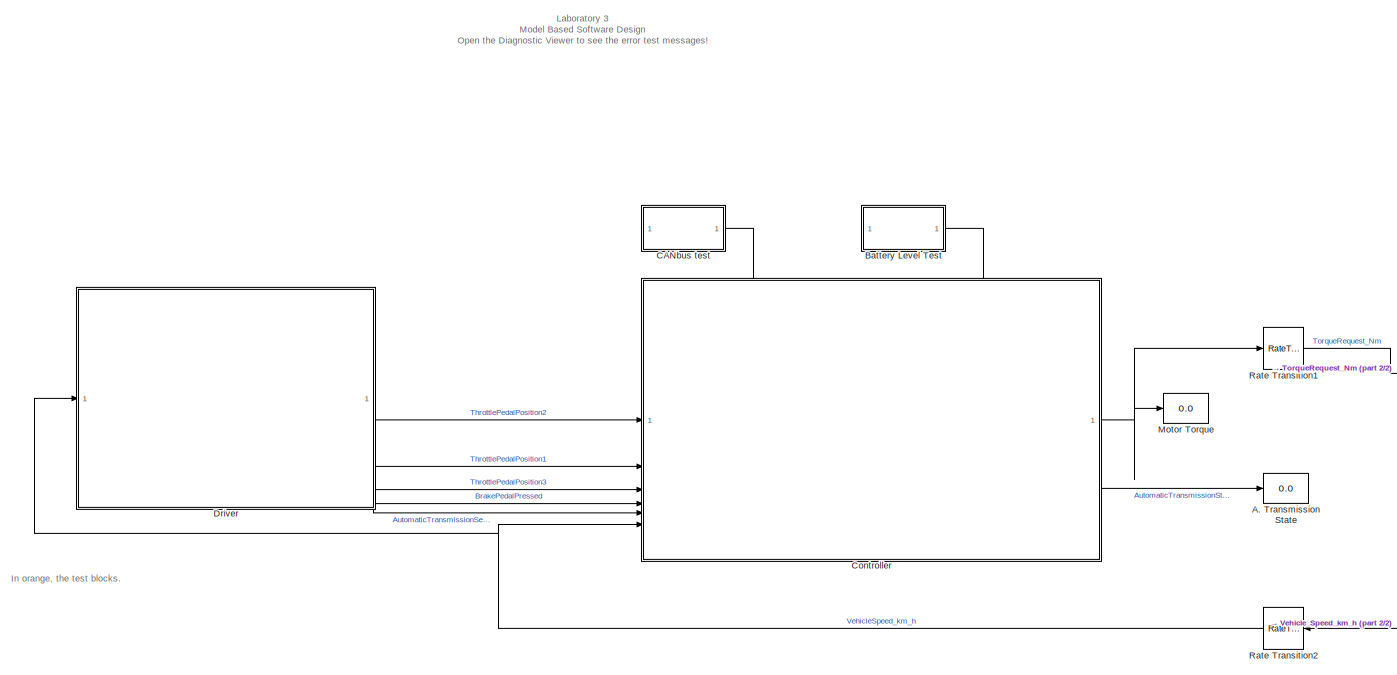
[diagram: root canvas - part 1/2, center side, full height]
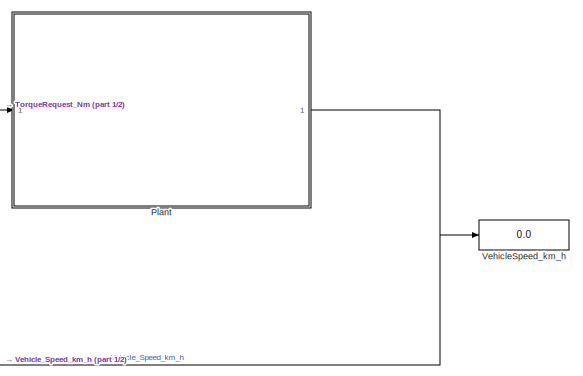
[diagram: root canvas - part 2/2, bottom right region]
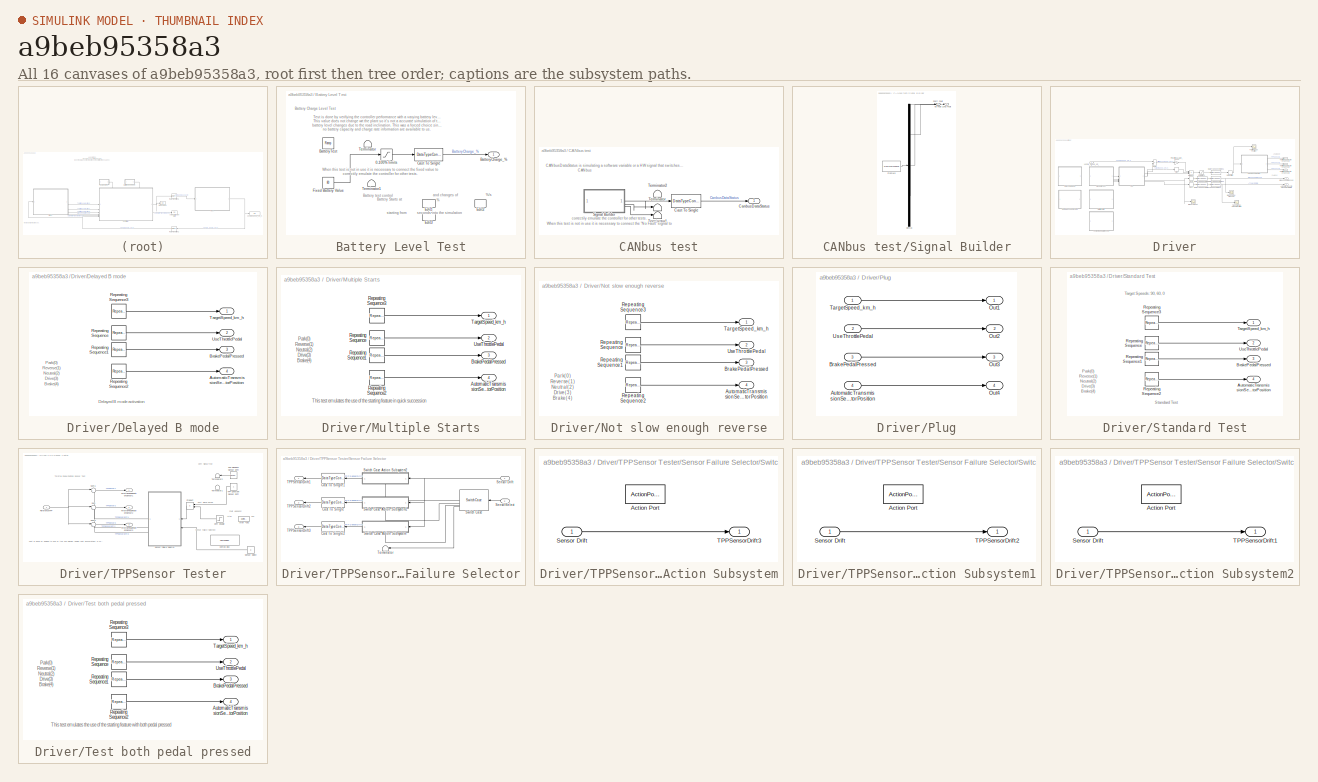
[diagram: thumbnail index - all 16 canvases of the model, root first then tree order]
MODEL slx_a9beb95358a3
KIND model
CONFIG AbsTol = auto
CONFIG EnableMultiTasking = off
CONFIG FixedStep = 1/10
CONFIG InitFcn = init_fn()
CONFIG MaxStep = auto
CONFIG MinStep = auto
CONFIG RelTol = 1e-3
CONFIG SampleTimeConstraint = Unconstrained
CONFIG SolverName = ode45
CONFIG StartTime = 0.0
CONFIG StopTime = 100
BLOCK [Display] A. Transmission State
  Decimation = 1
BLOCK [SubSystem] Battery Level Test
BLOCK [Saturate] Battery Level Test/0-100% limits
  LowerLimit = 0
  UpperLimit = 100
BLOCK [Outport] Battery Level Test/BatteryCharge_%
BLOCK [Reference] Battery Level Test/BatteryTest  REF=simulink/Sources/Ramp
  SourceBlock = simulink/Sources/Ramp
  SourceType = Ramp
BLOCK [DataTypeConversion] Battery Level Test/Cast To Single
  OutDataTypeStr = single
  RndMeth = Floor
  SaturateOnIntegerOverflow = off
BLOCK [EditField] Battery Level Test/Edit1
  Alignment = Center
  LabelPosition = Hide
  ShowInitialText = on
BLOCK [EditField] Battery Level Test/Edit2
  Alignment = Center
  LabelPosition = Hide
  ShowInitialText = on
BLOCK [EditField] Battery Level Test/Edit3
  Alignment = Center
  LabelPosition = Hide
  ShowInitialText = on
BLOCK [Constant] Battery Level Test/Fixed Battery Value
  Value = 80
BLOCK [Terminator] Battery Level Test/Terminator
BLOCK [Terminator] Battery Level Test/Terminator1
BLOCK [SubSystem] CANbus test
BLOCK [Outport] CANbus test/CanbusDataStatus
BLOCK [DataTypeConversion] CANbus test/Cast To Single
  OutDataTypeStr = single
  RndMeth = Floor
  SaturateOnIntegerOverflow = off
BLOCK [SubSystem] CANbus test/Signal Builder
  ClipboardFcn = sigbuilder_block('clipboard');
  CloseFcn = sigbuilder_block('close');
  ContinueFcn = sigbuilder_block('continue');
  CopyFcn = sigbuilder_block('copy');
  DeleteFcn = sigbuilder_block('delete');
  LoadFcn = sigbuilder_block('load');
  MaskHideContents = on
  ModelCloseFcn = sigbuilder_block('modelClose');
  NameChangeFcn = sigbuilder_block('namechange');
  OpenFcn = sigbuilder_block('open',[437.6 199.2 550.4 400 ]);
  PauseFcn = sigbuilder_block('pause');
  PreSaveFcn = sigbuilder_block('preSave');
  StartFcn = sigbuilder_block('start');
  StopFcn = sigbuilder_block('stop');
  Tag = STV Subsys
BLOCK [Demux] CANbus test/Signal Builder/Demux
  DisplayOption = none
  Outputs = 3
  Tag = STV Demux
BLOCK [FromWorkspace] CANbus test/Signal Builder/FromWs
  Tag = STV FromWs
  VariableName = tuvar
BLOCK [Outport] CANbus test/Signal Builder/Long Fault
  Port = 3
  Tag = STV Outport
BLOCK [Outport] CANbus test/Signal Builder/No Fault
  Tag = STV Outport
BLOCK [Outport] CANbus test/Signal Builder/Short Fault
  Port = 2
  Tag = STV Outport
BLOCK [Terminator] CANbus test/Terminator
BLOCK [Terminator] CANbus test/Terminator1
BLOCK [Terminator] CANbus test/Terminator2
BLOCK [ModelReference] Controller
  ModelNameDialog = controller
  ModelReferenceVersion = 3.126
  PortSchema = {"entries":[{"content":{"sides":[{"content":{"connectorIds":["In2","In1","In3","In4","In5","In7"]},"type":"ConnectorPlacement.EquallySpacedRectSide","uuid":"5e260b81-e1ce-497c-8572-ac5c2182ee27"},{"content":{"connectorIds":["Out1","Out2"],"side":"RIGHT"},"type":"ConnectorPlacement.EquallySpacedRectSide","uuid":"4325f63c-e453-4c79-ab01-1476da99aa25"},{"content":{"connectorIds":["In6","In8"],"side":...<+288ch>
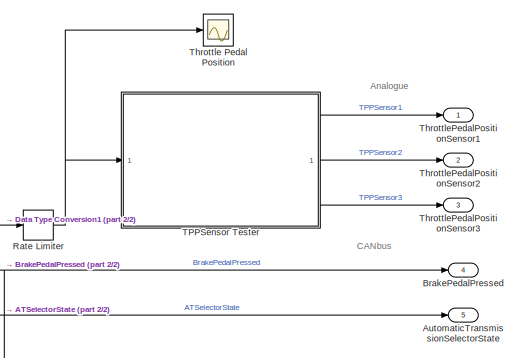
[diagram: Driver - part 1/2, top right region]
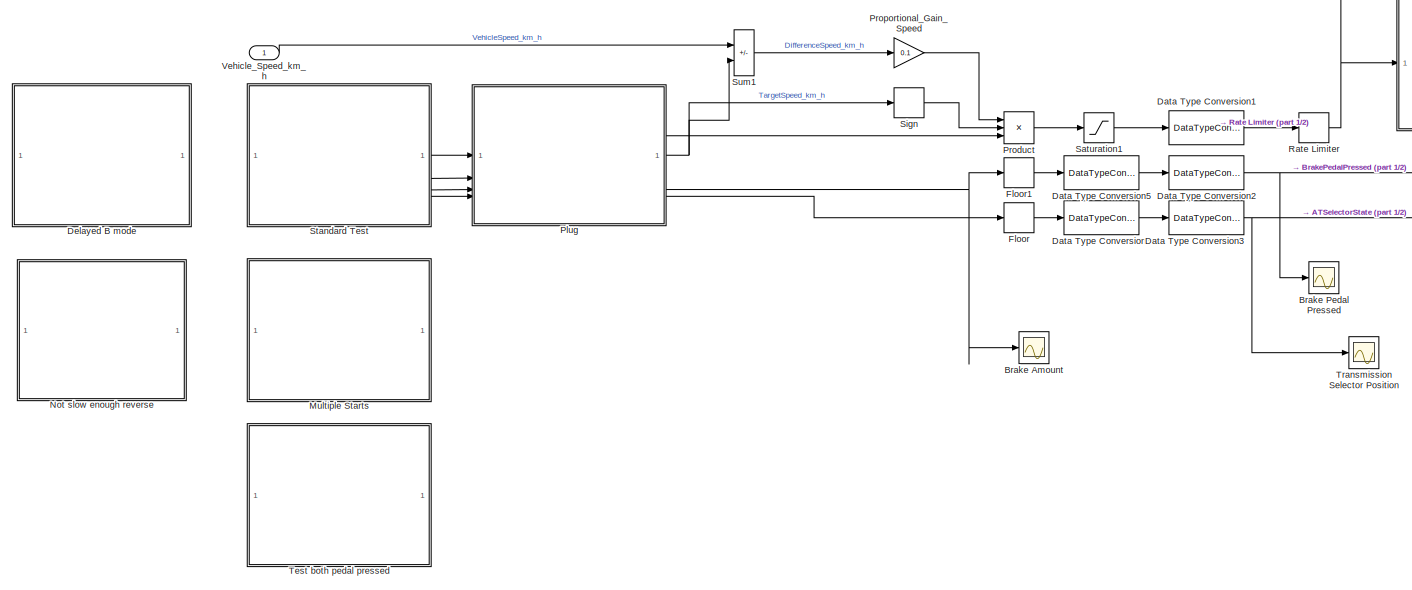
[diagram: Driver - part 2/2, most of the canvas]
BLOCK [SubSystem] Driver
BLOCK [Outport] Driver/AutomaticTransmissionSelectorState
  OutDataTypeStr = Enum: TransmissionState
  Port = 5
BLOCK [Scope] Driver/Brake Amount
  Floating = off
  NumInputPorts = 1
  ScopeSpecificationString = Simulink.scopes.TimeScopeBlockCfg('CurrentConfiguration', extmgr.ConfigurationSet(extmgr.Configuration('Core','General UI',true),extmgr.Configuration('Core','Source UI',true),extmgr.Configuration('Sources','WiredSimulink',true,'DataLoggingVariableName','ScopeData3'),extmgr.Configuration('Visuals','Time Domain',true,'SerializedDisplays',{struct('MinYLimReal','-0.125','MaxYLimReal','1.125','YLabelRe...<+1366ch>
BLOCK [Scope] Driver/Brake Pedal Pressed
  Floating = off
  NumInputPorts = 1
  ScopeSpecificationString = Simulink.scopes.TimeScopeBlockCfg('CurrentConfiguration', extmgr.ConfigurationSet(extmgr.Configuration('Core','General UI',true),extmgr.Configuration('Core','Source UI',true),extmgr.Configuration('Sources','WiredSimulink',true,'DataLoggingVariableName','ScopeData1'),extmgr.Configuration('Visuals','Time Domain',true,'SerializedDisplays',{struct('MinYLimReal','-0.125','MaxYLimReal','1.125','YLabelRe...<+1366ch>
BLOCK [Outport] Driver/BrakePedalPressed
  Port = 4
BLOCK [DataTypeConversion] Driver/Data Type Conversion1
  LockScale = on
  OutDataTypeStr = single
  RndMeth = Floor
  SaturateOnIntegerOverflow = off
BLOCK [DataTypeConversion] Driver/Data Type Conversion2
  LockScale = on
  OutDataTypeStr = boolean
  RndMeth = Floor
  SaturateOnIntegerOverflow = off
BLOCK [DataTypeConversion] Driver/Data Type Conversion3
  LockScale = on
  OutDataTypeStr = Enum: TransmissionState
  RndMeth = Floor
  SaturateOnIntegerOverflow = off
BLOCK [DataTypeConversion] Driver/Data Type Conversion4
  LockScale = on
  OutDataTypeStr = int32
  RndMeth = Floor
  SaturateOnIntegerOverflow = off
BLOCK [DataTypeConversion] Driver/Data Type Conversion5
  LockScale = on
  OutDataTypeStr = int32
  RndMeth = Floor
  SaturateOnIntegerOverflow = off
BLOCK [SubSystem] Driver/Delayed B mode
BLOCK [Outport] Driver/Delayed B mode/AutomaticTransmissionSelectorPosition
  Port = 4
BLOCK [Outport] Driver/Delayed B mode/BrakePedalPressed
  Port = 3
BLOCK [Reference] Driver/Delayed B mode/Repeating Sequence  REF=simulink/Sources/Repeating
Sequence
  SourceBlock = simulink/Sources/Repeating\nSequence
  SourceType = Repeating table
BLOCK [Reference] Driver/Delayed B mode/Repeating Sequence1  REF=simulink/Sources/Repeating
Sequence
  SourceBlock = simulink/Sources/Repeating\nSequence
  SourceType = Repeating table
BLOCK [Reference] Driver/Delayed B mode/Repeating Sequence2  REF=simulink/Sources/Repeating
Sequence
  SourceBlock = simulink/Sources/Repeating\nSequence
  SourceType = Repeating table
BLOCK [Reference] Driver/Delayed B mode/Repeating Sequence3  REF=simulink/Sources/Repeating
Sequence
  SourceBlock = simulink/Sources/Repeating\nSequence
  SourceType = Repeating table
BLOCK [Outport] Driver/Delayed B mode/TargetSpeed_km_h
BLOCK [Outport] Driver/Delayed B mode/UseThrottlePedal
  Port = 2
BLOCK [Rounding] Driver/Floor
  Operator = round
BLOCK [Rounding] Driver/Floor1
  Operator = round
BLOCK [SubSystem] Driver/Multiple Starts
BLOCK [Outport] Driver/Multiple Starts/AutomaticTransmissionSelectorPosition
  Port = 4
BLOCK [Outport] Driver/Multiple Starts/BrakePedalPressed
  Port = 3
BLOCK [Reference] Driver/Multiple Starts/Repeating Sequence  REF=simulink/Sources/Repeating
Sequence
  SourceBlock = simulink/Sources/Repeating\nSequence
  SourceType = Repeating table
BLOCK [Reference] Driver/Multiple Starts/Repeating Sequence1  REF=simulink/Sources/Repeating
Sequence
  SourceBlock = simulink/Sources/Repeating\nSequence
  SourceType = Repeating table
BLOCK [Reference] Driver/Multiple Starts/Repeating Sequence2  REF=simulink/Sources/Repeating
Sequence
  SourceBlock = simulink/Sources/Repeating\nSequence
  SourceType = Repeating table
BLOCK [Reference] Driver/Multiple Starts/Repeating Sequence3  REF=simulink/Sources/Repeating
Sequence
  SourceBlock = simulink/Sources/Repeating\nSequence
  SourceType = Repeating table
BLOCK [Outport] Driver/Multiple Starts/TargetSpeed_km_h
BLOCK [Outport] Driver/Multiple Starts/UseThrottlePedal
  Port = 2
BLOCK [SubSystem] Driver/Not slow enough reverse
BLOCK [Outport] Driver/Not slow enough reverse/AutomaticTransmissionSelectorPosition
  Port = 4
BLOCK [Outport] Driver/Not slow enough reverse/BrakePedalPressed
  Port = 3
BLOCK [Reference] Driver/Not slow enough reverse/Repeating Sequence  REF=simulink/Sources/Repeating
Sequence
  SourceBlock = simulink/Sources/Repeating\nSequence
  SourceType = Repeating table
BLOCK [Reference] Driver/Not slow enough reverse/Repeating Sequence1  REF=simulink/Sources/Repeating
Sequence
  SourceBlock = simulink/Sources/Repeating\nSequence
  SourceType = Repeating table
BLOCK [Reference] Driver/Not slow enough reverse/Repeating Sequence2  REF=simulink/Sources/Repeating
Sequence
  SourceBlock = simulink/Sources/Repeating\nSequence
  SourceType = Repeating table
BLOCK [Reference] Driver/Not slow enough reverse/Repeating Sequence3  REF=simulink/Sources/Repeating
Sequence
  SourceBlock = simulink/Sources/Repeating\nSequence
  SourceType = Repeating table
BLOCK [Outport] Driver/Not slow enough reverse/TargetSpeed_km_h
BLOCK [Outport] Driver/Not slow enough reverse/UseThrottlePedal
  Port = 2
BLOCK [SubSystem] Driver/Plug
BLOCK [Inport] Driver/Plug/AutomaticTransmissionSelectorPosition
  Port = 4
BLOCK [Inport] Driver/Plug/BrakePedalPressed
  Port = 3
BLOCK [Outport] Driver/Plug/Out1
BLOCK [Outport] Driver/Plug/Out2
  Port = 2
BLOCK [Outport] Driver/Plug/Out3
  Port = 3
BLOCK [Outport] Driver/Plug/Out4
  Port = 4
BLOCK [Inport] Driver/Plug/TargetSpeed_km_h
BLOCK [Inport] Driver/Plug/UseThrottlePedal
  Port = 2
BLOCK [Product] Driver/Product
  Inputs = 3
BLOCK [Gain] Driver/Proportional_Gain_Speed
  Gain = 0.1
BLOCK [RateLimiter] Driver/Rate Limiter
  RisingSlewLimit = 0.5
  SampleTimeMode = inherited
BLOCK [Saturate] Driver/Saturation1
  LowerLimit = 0
  UpperLimit = 1
BLOCK [Signum] Driver/Sign
BLOCK [SubSystem] Driver/Standard Test
BLOCK [Outport] Driver/Standard Test/AutomaticTransmissionSelectorPosition
  Port = 4
BLOCK [Outport] Driver/Standard Test/BrakePedalPressed
  Port = 3
BLOCK [Reference] Driver/Standard Test/Repeating Sequence  REF=simulink/Sources/Repeating
Sequence
  SourceBlock = simulink/Sources/Repeating\nSequence
  SourceType = Repeating table
BLOCK [Reference] Driver/Standard Test/Repeating Sequence1  REF=simulink/Sources/Repeating
Sequence
  SourceBlock = simulink/Sources/Repeating\nSequence
  SourceType = Repeating table
BLOCK [Reference] Driver/Standard Test/Repeating Sequence2  REF=simulink/Sources/Repeating
Sequence
  SourceBlock = simulink/Sources/Repeating\nSequence
  SourceType = Repeating table
BLOCK [Reference] Driver/Standard Test/Repeating Sequence3  REF=simulink/Sources/Repeating
Sequence
  SourceBlock = simulink/Sources/Repeating\nSequence
  SourceType = Repeating table
BLOCK [Outport] Driver/Standard Test/TargetSpeed_km_h
BLOCK [Outport] Driver/Standard Test/UseThrottlePedal
  Port = 2
BLOCK [Sum] Driver/Sum1
  IconShape = rectangular
  Inputs = |-+
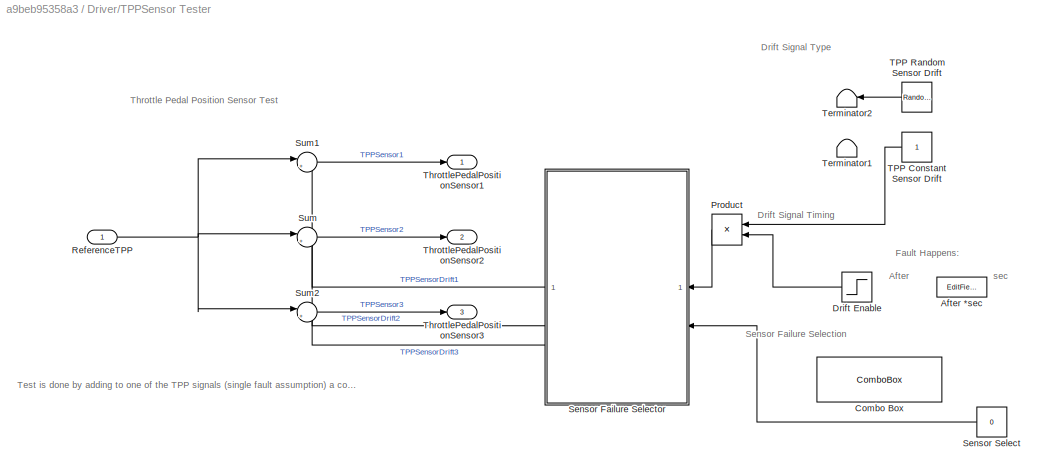
BLOCK [SubSystem] Driver/TPPSensor Tester
BLOCK [EditField] Driver/TPPSensor Tester/After *sec
  Alignment = Center
  LabelPosition = Hide
  ShowInitialText = on
BLOCK [ComboBox] Driver/TPPSensor Tester/Combo Box
  LabelPosition = Hide
  SelectedLabel = No Fault
BLOCK [Step] Driver/TPPSensor Tester/Drift Enable
  NameLocation = top
  SampleTime = 0
  Time = 15
BLOCK [Product] Driver/TPPSensor Tester/Product
  NameLocation = top
BLOCK [Inport] Driver/TPPSensor Tester/ReferenceTPP
BLOCK [SubSystem] Driver/TPPSensor Tester/Sensor Failure Selector
  NameLocation = top
BLOCK [DataTypeConversion] Driver/TPPSensor Tester/Sensor Failure Selector/Cast To Single
  NameLocation = top
  OutDataTypeStr = single
  RndMeth = Floor
  SaturateOnIntegerOverflow = off
BLOCK [DataTypeConversion] Driver/TPPSensor Tester/Sensor Failure Selector/Cast To Single1
  NameLocation = top
  OutDataTypeStr = single
  RndMeth = Floor
  SaturateOnIntegerOverflow = off
BLOCK [DataTypeConversion] Driver/TPPSensor Tester/Sensor Failure Selector/Cast To Single2
  NameLocation = top
  OutDataTypeStr = single
  RndMeth = Floor
  SaturateOnIntegerOverflow = off
BLOCK [Inport] Driver/TPPSensor Tester/Sensor Failure Selector/Sensor Drift
BLOCK [Inport] Driver/TPPSensor Tester/Sensor Failure Selector/SensorSelect
  Port = 2
BLOCK [SwitchCase] Driver/TPPSensor Tester/Sensor Failure Selector/Switch Case
  CaseConditions = {1,2,3}
  NameLocation = top
BLOCK [SubSystem] Driver/TPPSensor Tester/Sensor Failure Selector/Switch Case Action Subsystem
  NameLocation = top
  TreatAsAtomicUnit = on
BLOCK [ActionPort] Driver/TPPSensor Tester/Sensor Failure Selector/Switch Case Action Subsystem/Action Port
  ActionPortLabel = case [ 3 ]:
BLOCK [Inport] Driver/TPPSensor Tester/Sensor Failure Selector/Switch Case Action Subsystem/Sensor Drift
BLOCK [Outport] Driver/TPPSensor Tester/Sensor Failure Selector/Switch Case Action Subsystem/TPPSensorDrift3
BLOCK [SubSystem] Driver/TPPSensor Tester/Sensor Failure Selector/Switch Case Action Subsystem1
  NameLocation = top
  TreatAsAtomicUnit = on
BLOCK [ActionPort] Driver/TPPSensor Tester/Sensor Failure Selector/Switch Case Action Subsystem1/Action Port
  ActionPortLabel = case [ 2 ]:
BLOCK [Inport] Driver/TPPSensor Tester/Sensor Failure Selector/Switch Case Action Subsystem1/Sensor Drift
BLOCK [Outport] Driver/TPPSensor Tester/Sensor Failure Selector/Switch Case Action Subsystem1/TPPSensorDrift2
BLOCK [SubSystem] Driver/TPPSensor Tester/Sensor Failure Selector/Switch Case Action Subsystem2
  NameLocation = top
  TreatAsAtomicUnit = on
BLOCK [ActionPort] Driver/TPPSensor Tester/Sensor Failure Selector/Switch Case Action Subsystem2/Action Port
  ActionPortLabel = case [ 1 ]:
BLOCK [Inport] Driver/TPPSensor Tester/Sensor Failure Selector/Switch Case Action Subsystem2/Sensor Drift
BLOCK [Outport] Driver/TPPSensor Tester/Sensor Failure Selector/Switch Case Action Subsystem2/TPPSensorDrift1
BLOCK [Outport] Driver/TPPSensor Tester/Sensor Failure Selector/TPPSensorDrift1
  NameLocation = top
BLOCK [Outport] Driver/TPPSensor Tester/Sensor Failure Selector/TPPSensorDrift2
  NameLocation = top
  Port = 2
BLOCK [Outport] Driver/TPPSensor Tester/Sensor Failure Selector/TPPSensorDrift3
  NameLocation = top
  Port = 3
BLOCK [Terminator] Driver/TPPSensor Tester/Sensor Failure Selector/Terminator
  NameLocation = top
BLOCK [Constant] Driver/TPPSensor Tester/Sensor Select
  NameLocation = top
  Value = 0
BLOCK [Sum] Driver/TPPSensor Tester/Sum
  Inputs = |++
BLOCK [Sum] Driver/TPPSensor Tester/Sum1
  Inputs = |++
BLOCK [Sum] Driver/TPPSensor Tester/Sum2
  Inputs = |++
BLOCK [Constant] Driver/TPPSensor Tester/TPP Constant Sensor Drift
  NameLocation = top
BLOCK [RandomNumber] Driver/TPPSensor Tester/TPP Random Sensor Drift
  NameLocation = top
  SampleTime = 0.1
  Variance = 2
BLOCK [Terminator] Driver/TPPSensor Tester/Terminator1
  NameLocation = top
BLOCK [Terminator] Driver/TPPSensor Tester/Terminator2
  NameLocation = top
BLOCK [Outport] Driver/TPPSensor Tester/ThrottlePedalPositionSensor1
BLOCK [Outport] Driver/TPPSensor Tester/ThrottlePedalPositionSensor2
  Port = 2
BLOCK [Outport] Driver/TPPSensor Tester/ThrottlePedalPositionSensor3
  Port = 3
BLOCK [SubSystem] Driver/Test both pedal pressed
BLOCK [Outport] Driver/Test both pedal pressed/AutomaticTransmissionSelectorPosition
  Port = 4
BLOCK [Outport] Driver/Test both pedal pressed/BrakePedalPressed
  Port = 3
BLOCK [Reference] Driver/Test both pedal pressed/Repeating Sequence  REF=simulink/Sources/Repeating
Sequence
  SourceBlock = simulink/Sources/Repeating\nSequence
  SourceType = Repeating table
BLOCK [Reference] Driver/Test both pedal pressed/Repeating Sequence1  REF=simulink/Sources/Repeating
Sequence
  SourceBlock = simulink/Sources/Repeating\nSequence
  SourceType = Repeating table
BLOCK [Reference] Driver/Test both pedal pressed/Repeating Sequence2  REF=simulink/Sources/Repeating
Sequence
  SourceBlock = simulink/Sources/Repeating\nSequence
  SourceType = Repeating table
BLOCK [Reference] Driver/Test both pedal pressed/Repeating Sequence3  REF=simulink/Sources/Repeating
Sequence
  SourceBlock = simulink/Sources/Repeating\nSequence
  SourceType = Repeating table
BLOCK [Outport] Driver/Test both pedal pressed/TargetSpeed_km_h
BLOCK [Outport] Driver/Test both pedal pressed/UseThrottlePedal
  Port = 2
BLOCK [Scope] Driver/Throttle Pedal Position
  Floating = off
  NumInputPorts = 1
  ScopeSpecificationString = Simulink.scopes.TimeScopeBlockCfg('CurrentConfiguration', extmgr.ConfigurationSet(extmgr.Configuration('Core','General UI',true),extmgr.Configuration('Core','Source UI',true),extmgr.Configuration('Sources','WiredSimulink',true,'DataLoggingVariableName','ScopeData2'),extmgr.Configuration('Visuals','Time Domain',true,'SerializedDisplays',{struct('MinYLimReal','-0.125','MaxYLimReal','1.125','YLabelRe...<+1359ch>
BLOCK [Outport] Driver/ThrottlePedalPositionSensor1
BLOCK [Outport] Driver/ThrottlePedalPositionSensor2
  Port = 2
BLOCK [Outport] Driver/ThrottlePedalPositionSensor3
  Port = 3
BLOCK [Scope] Driver/Transmission Selector Position
  Floating = off
  NumInputPorts = 1
  ScopeSpecificationString = Simulink.scopes.TimeScopeBlockCfg('CurrentConfiguration', extmgr.ConfigurationSet(extmgr.Configuration('Core','General UI',true),extmgr.Configuration('Core','Source UI',true),extmgr.Configuration('Sources','WiredSimulink',true,'DataLoggingVariableName','ScopeData2'),extmgr.Configuration('Visuals','Time Domain',true,'SerializedDisplays',{struct('MinYLimReal','-0.5','MaxYLimReal','4.5','YLabelReal',...<+1356ch>
BLOCK [Inport] Driver/Vehicle_Speed_km_h
BLOCK [Display] Motor Torque
  Decimation = 1
BLOCK [ModelReference] Plant
  ModelNameDialog = plant
  ModelReferenceVersion = 3.47
BLOCK [RateTransition] Rate Transition1
BLOCK [RateTransition] Rate Transition2
  NameLocation = top
BLOCK [Display] VehicleSpeed_km_h
  Decimation = 1
ANNOTATION (root): In orange, the test blocks.
ANNOTATION (root): Laboratory 3 Model Based Software Design Open the Diagnostic Viewer to see the error test messages!
ANNOTATION Battery Level Test: %
ANNOTATION Battery Level Test: %/s
ANNOTATION Battery Level Test: Battery Charge Level Test
ANNOTATION Battery Level Test: Battery Starts at
ANNOTATION Battery Level Test: Battery test control
ANNOTATION Battery Level Test: Test is done by verifying the controller performance with a varying battery level. This value does not change wrt the plant so it's not a accurate simulation of the battery level changes due to the road inclination. This was a forced choice since no battery capacity and charge rate information are available to us.
ANNOTATION Battery Level Test: When this test is not in use it is necessary to connect the fixed value to correctily emulate the controller for other tests.
ANNOTATION Battery Level Test: and changes of
ANNOTATION Battery Level Test: seconds into the simulation
ANNOTATION Battery Level Test: starting from
ANNOTATION CANbus test: CANbus
ANNOTATION CANbus test: CANbusDataStatus is simulating a software variable or a HW signal that switches to on if no packet are received by the CANbus controller on the ECU.
ANNOTATION CANbus test: When this test is not in use it is necessary to connect the "No Fault" signal to correctily emulate the controller for other tests.
ANNOTATION Driver: Analogue
ANNOTATION Driver: CANbus
ANNOTATION Driver/Delayed B mode: Park(0) Reverse(1) Neutral(2) Drive(3) Brake(4)
ANNOTATION Driver/Delayed B mode: Delayed B mode activation
ANNOTATION Driver/Multiple Starts: Park(0) Reverse(1) Neutral(2) Drive(3) Brake(4)
ANNOTATION Driver/Multiple Starts: This test emulates the use of the starting feature in quick succession
ANNOTATION Driver/Not slow enough reverse: Park(0) Reverse(1) Neutral(2) Drive(3) Brake(4)
ANNOTATION Driver/Standard Test: Park(0) Reverse(1) Neutral(2) Drive(3) Brake(4)
ANNOTATION Driver/Standard Test: Standard Test
ANNOTATION Driver/Standard Test: Target Speeds: 90, 60, 0
ANNOTATION Driver/TPPSensor Tester: Throttle Pedal Position Sensor Test
ANNOTATION Driver/TPPSensor Tester: After
ANNOTATION Driver/TPPSensor Tester: Drift Signal Timing
ANNOTATION Driver/TPPSensor Tester: Drift Signal Type
ANNOTATION Driver/TPPSensor Tester: Fault Happens:
ANNOTATION Driver/TPPSensor Tester: Sensor Failure Selection
ANNOTATION Driver/TPPSensor Tester: Test is done by adding to one of the TPP signals (single fault assumption) a constant or random drift value, for a certain amount of time or till the end of the simulation.
ANNOTATION Driver/TPPSensor Tester: sec
ANNOTATION Driver/Test both pedal pressed: Park(0) Reverse(1) Neutral(2) Drive(3) Brake(4)
ANNOTATION Driver/Test both pedal pressed: This test emulates the use of the starting feature with both pedal pressed
LINE Battery Level Test/0-100% limits:1 -> Battery Level Test/Cast To Single:1
LINE Battery Level Test/Cast To Single:1 -> Battery Level Test/BatteryCharge_%:1
LINE Battery Level Test/Fixed Battery Value:1 -> Battery Level Test/0-100% limits:1
LINE Battery Level Test:1 -> Controller:8
LINE CANbus test/Cast To Single:1 -> CANbus test/CanbusDataStatus:1
LINE CANbus test/Signal Builder:1 -> CANbus test/Cast To Single:1
LINE CANbus test/Signal Builder:2 -> CANbus test/Terminator:1
LINE CANbus test/Signal Builder:3 -> CANbus test/Terminator1:1
LINE CANbus test:1 -> Controller:6
NET Controller:1 -> Motor Torque:1, Rate Transition1:1
LINE Controller:2 -> A. Transmission State:1
LINE Driver/Data Type Conversion1:1 -> Driver/Rate Limiter:1
NET Driver/Data Type Conversion2:1 -> Driver/Brake Pedal Pressed:1, Driver/BrakePedalPressed:1
NET Driver/Data Type Conversion3:1 -> Driver/AutomaticTransmissionSelectorState:1, Driver/Transmission Selector Position:1
LINE Driver/Data Type Conversion4:1 -> Driver/Data Type Conversion3:1
LINE Driver/Data Type Conversion5:1 -> Driver/Data Type Conversion2:1
LINE Driver/Delayed B mode/Repeating Sequence1:1 -> Driver/Delayed B mode/BrakePedalPressed:1
LINE Driver/Delayed B mode/Repeating Sequence2:1 -> Driver/Delayed B mode/AutomaticTransmissionSelectorPosition:1
LINE Driver/Delayed B mode/Repeating Sequence3:1 -> Driver/Delayed B mode/TargetSpeed_km_h:1
LINE Driver/Delayed B mode/Repeating Sequence:1 -> Driver/Delayed B mode/UseThrottlePedal:1
LINE Driver/Floor1:1 -> Driver/Data Type Conversion5:1
LINE Driver/Floor:1 -> Driver/Data Type Conversion4:1
LINE Driver/Multiple Starts/Repeating Sequence1:1 -> Driver/Multiple Starts/BrakePedalPressed:1
LINE Driver/Multiple Starts/Repeating Sequence2:1 -> Driver/Multiple Starts/AutomaticTransmissionSelectorPosition:1
LINE Driver/Multiple Starts/Repeating Sequence3:1 -> Driver/Multiple Starts/TargetSpeed_km_h:1
LINE Driver/Multiple Starts/Repeating Sequence:1 -> Driver/Multiple Starts/UseThrottlePedal:1
LINE Driver/Not slow enough reverse/Repeating Sequence1:1 -> Driver/Not slow enough reverse/BrakePedalPressed:1
LINE Driver/Not slow enough reverse/Repeating Sequence2:1 -> Driver/Not slow enough reverse/AutomaticTransmissionSelectorPosition:1
LINE Driver/Not slow enough reverse/Repeating Sequence3:1 -> Driver/Not slow enough reverse/TargetSpeed_km_h:1
LINE Driver/Not slow enough reverse/Repeating Sequence:1 -> Driver/Not slow enough reverse/UseThrottlePedal:1
LINE Driver/Plug/AutomaticTransmissionSelectorPosition:1 -> Driver/Plug/Out4:1
LINE Driver/Plug/BrakePedalPressed:1 -> Driver/Plug/Out3:1
LINE Driver/Plug/TargetSpeed_km_h:1 -> Driver/Plug/Out1:1
LINE Driver/Plug/UseThrottlePedal:1 -> Driver/Plug/Out2:1
NET Driver/Plug:1 -> Driver/Sign:1, Driver/Sum1:2
LINE Driver/Plug:2 -> Driver/Product:3
NET Driver/Plug:3 -> Driver/Brake Amount:1, Driver/Floor1:1
LINE Driver/Plug:4 -> Driver/Floor:1
LINE Driver/Product:1 -> Driver/Saturation1:1
LINE Driver/Proportional_Gain_Speed:1 -> Driver/Product:1
NET Driver/Rate Limiter:1 -> Driver/TPPSensor Tester:1, Driver/Throttle Pedal Position:1
LINE Driver/Saturation1:1 -> Driver/Data Type Conversion1:1
LINE Driver/Sign:1 -> Driver/Product:2
LINE Driver/Standard Test/Repeating Sequence1:1 -> Driver/Standard Test/BrakePedalPressed:1
LINE Driver/Standard Test/Repeating Sequence2:1 -> Driver/Standard Test/AutomaticTransmissionSelectorPosition:1
LINE Driver/Standard Test/Repeating Sequence3:1 -> Driver/Standard Test/TargetSpeed_km_h:1
LINE Driver/Standard Test/Repeating Sequence:1 -> Driver/Standard Test/UseThrottlePedal:1
LINE Driver/Standard Test:1 -> Driver/Plug:1
LINE Driver/Standard Test:2 -> Driver/Plug:2
LINE Driver/Standard Test:3 -> Driver/Plug:3
LINE Driver/Standard Test:4 -> Driver/Plug:4
LINE Driver/Sum1:1 -> Driver/Proportional_Gain_Speed:1
LINE Driver/TPPSensor Tester/Drift Enable:1 -> Driver/TPPSensor Tester/Product:2
LINE Driver/TPPSensor Tester/Product:1 -> Driver/TPPSensor Tester/Sensor Failure Selector:1
NET Driver/TPPSensor Tester/ReferenceTPP:1 -> Driver/TPPSensor Tester/Sum1:1, Driver/TPPSensor Tester/Sum2:1, Driver/TPPSensor Tester/Sum:1
LINE Driver/TPPSensor Tester/Sensor Failure Selector/Cast To Single1:1 -> Driver/TPPSensor Tester/Sensor Failure Selector/TPPSensorDrift1:1
LINE Driver/TPPSensor Tester/Sensor Failure Selector/Cast To Single2:1 -> Driver/TPPSensor Tester/Sensor Failure Selector/TPPSensorDrift3:1
LINE Driver/TPPSensor Tester/Sensor Failure Selector/Cast To Single:1 -> Driver/TPPSensor Tester/Sensor Failure Selector/TPPSensorDrift2:1
NET Driver/TPPSensor Tester/Sensor Failure Selector/Sensor Drift:1 -> Driver/TPPSensor Tester/Sensor Failure Selector/Switch Case Action Subsystem1:1, Driver/TPPSensor Tester/Sensor Failure Selector/Switch Case Action Subsystem2:1, Driver/TPPSensor Tester/Sensor Failure Selector/Switch Case Action Subsystem:1
LINE Driver/TPPSensor Tester/Sensor Failure Selector/SensorSelect:1 -> Driver/TPPSensor Tester/Sensor Failure Selector/Switch Case:1
LINE Driver/TPPSensor Tester/Sensor Failure Selector/Switch Case Action Subsystem/Sensor Drift:1 -> Driver/TPPSensor Tester/Sensor Failure Selector/Switch Case Action Subsystem/TPPSensorDrift3:1
LINE Driver/TPPSensor Tester/Sensor Failure Selector/Switch Case Action Subsystem1/Sensor Drift:1 -> Driver/TPPSensor Tester/Sensor Failure Selector/Switch Case Action Subsystem1/TPPSensorDrift2:1
LINE Driver/TPPSensor Tester/Sensor Failure Selector/Switch Case Action Subsystem1:1 -> Driver/TPPSensor Tester/Sensor Failure Selector/Cast To Single:1
LINE Driver/TPPSensor Tester/Sensor Failure Selector/Switch Case Action Subsystem2/Sensor Drift:1 -> Driver/TPPSensor Tester/Sensor Failure Selector/Switch Case Action Subsystem2/TPPSensorDrift1:1
LINE Driver/TPPSensor Tester/Sensor Failure Selector/Switch Case Action Subsystem2:1 -> Driver/TPPSensor Tester/Sensor Failure Selector/Cast To Single1:1
LINE Driver/TPPSensor Tester/Sensor Failure Selector/Switch Case Action Subsystem:1 -> Driver/TPPSensor Tester/Sensor Failure Selector/Cast To Single2:1
LINE Driver/TPPSensor Tester/Sensor Failure Selector/Switch Case:1 -> Driver/TPPSensor Tester/Sensor Failure Selector/Switch Case Action Subsystem2:ifaction
LINE Driver/TPPSensor Tester/Sensor Failure Selector/Switch Case:2 -> Driver/TPPSensor Tester/Sensor Failure Selector/Switch Case Action Subsystem1:ifaction
LINE Driver/TPPSensor Tester/Sensor Failure Selector/Switch Case:3 -> Driver/TPPSensor Tester/Sensor Failure Selector/Switch Case Action Subsystem:ifaction
LINE Driver/TPPSensor Tester/Sensor Failure Selector/Switch Case:4 -> Driver/TPPSensor Tester/Sensor Failure Selector/Terminator:1
LINE Driver/TPPSensor Tester/Sensor Failure Selector:1 -> Driver/TPPSensor Tester/Sum1:2
LINE Driver/TPPSensor Tester/Sensor Failure Selector:2 -> Driver/TPPSensor Tester/Sum:2
LINE Driver/TPPSensor Tester/Sensor Failure Selector:3 -> Driver/TPPSensor Tester/Sum2:2
LINE Driver/TPPSensor Tester/Sensor Select:1 -> Driver/TPPSensor Tester/Sensor Failure Selector:2
LINE Driver/TPPSensor Tester/Sum1:1 -> Driver/TPPSensor Tester/ThrottlePedalPositionSensor1:1
LINE Driver/TPPSensor Tester/Sum2:1 -> Driver/TPPSensor Tester/ThrottlePedalPositionSensor3:1
LINE Driver/TPPSensor Tester/Sum:1 -> Driver/TPPSensor Tester/ThrottlePedalPositionSensor2:1
LINE Driver/TPPSensor Tester/TPP Constant Sensor Drift:1 -> Driver/TPPSensor Tester/Product:1
LINE Driver/TPPSensor Tester/TPP Random Sensor Drift:1 -> Driver/TPPSensor Tester/Terminator2:1
LINE Driver/TPPSensor Tester:1 -> Driver/ThrottlePedalPositionSensor1:1
LINE Driver/TPPSensor Tester:2 -> Driver/ThrottlePedalPositionSensor2:1
LINE Driver/TPPSensor Tester:3 -> Driver/ThrottlePedalPositionSensor3:1
LINE Driver/Test both pedal pressed/Repeating Sequence1:1 -> Driver/Test both pedal pressed/BrakePedalPressed:1
LINE Driver/Test both pedal pressed/Repeating Sequence2:1 -> Driver/Test both pedal pressed/AutomaticTransmissionSelectorPosition:1
LINE Driver/Test both pedal pressed/Repeating Sequence3:1 -> Driver/Test both pedal pressed/TargetSpeed_km_h:1
LINE Driver/Test both pedal pressed/Repeating Sequence:1 -> Driver/Test both pedal pressed/UseThrottlePedal:1
LINE Driver/Vehicle_Speed_km_h:1 -> Driver/Sum1:1
LINE Driver:1 -> Controller:2
LINE Driver:2 -> Controller:1
LINE Driver:3 -> Controller:3
LINE Driver:4 -> Controller:4
LINE Driver:5 -> Controller:5
NET Plant:1 -> Rate Transition2:1, VehicleSpeed_km_h:1
LINE Rate Transition1:1 -> Plant:1
NET Rate Transition2:1 -> Controller:7, Driver:1
note: NET lines group one-source signal fan-out (src -> all destinations, sorted); 1:1 wires keep LINE
